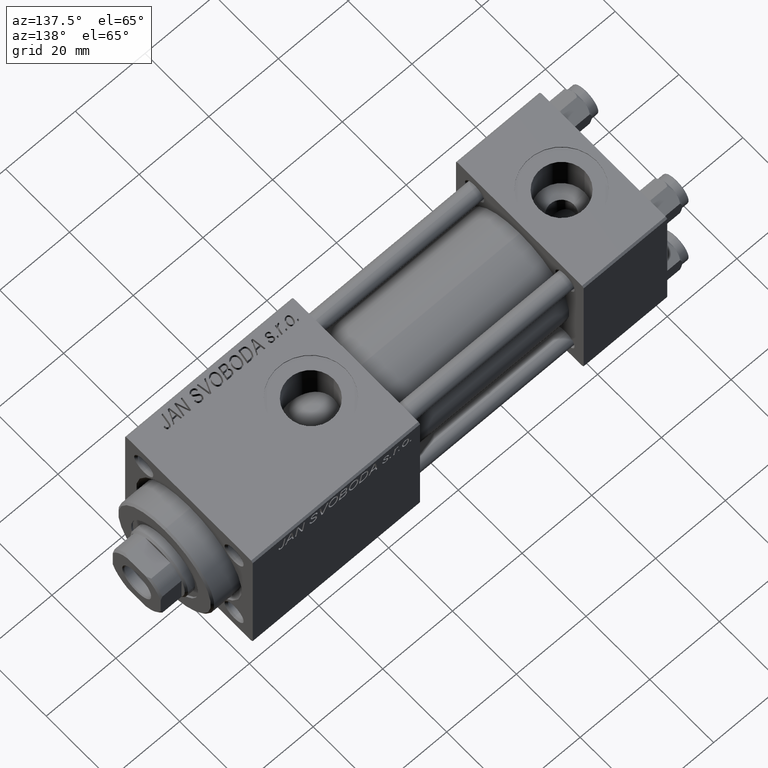
[diagram: clean part render]
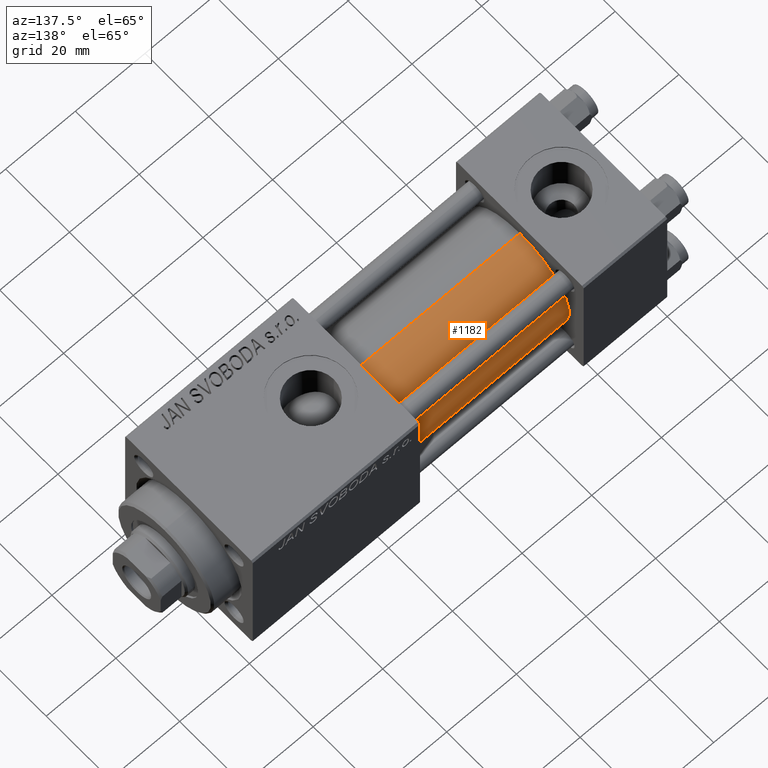
[diagram: same view with one face highlighted and labeled with its STEP entity id]
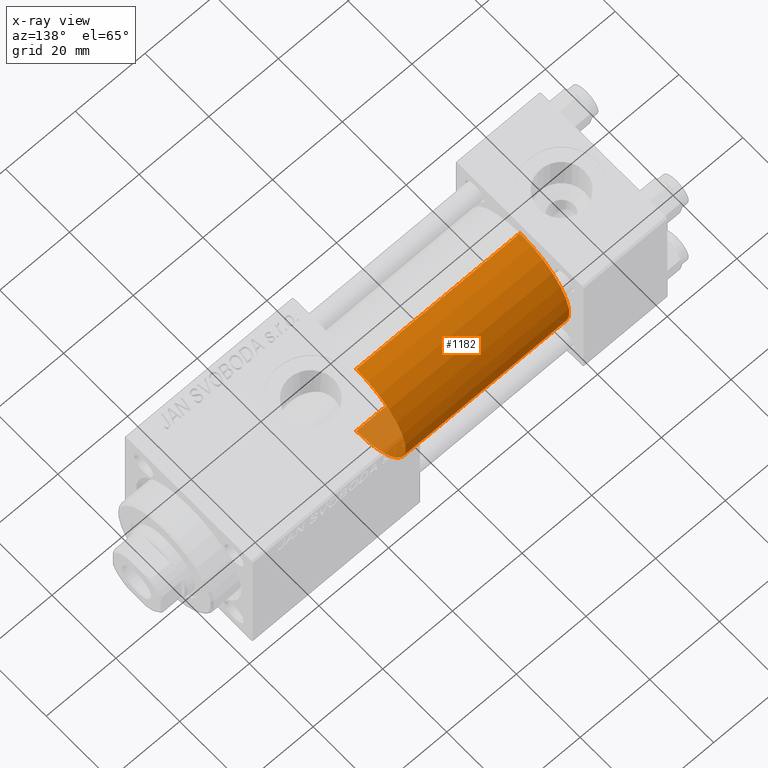
[diagram: x-ray of the same camera — body ghosted, the highlighted face saturated]
A machine part, auxiliary view. The second image highlights one B-rep face of the part: STEP entity #1182.
The next image is the same camera in x-ray: the body ghosted, the highlighted face saturated — about 6% of this face is hidden behind the body in this view.
In plain terms, the highlighted cylindrical surface (partial cylindrical patch) has radius 15.5 mm, axis along (-1, -0, -0).
Its self-contained STEP definition (entity closure, byte-faithful):
#495 = ORIENTED_EDGE ( 'NONE', *, *, #40416, .F. ) ;
#1182 = ADVANCED_FACE ( 'NONE', ( #22752 ), #14850, .T. ) ;
#2471 = DIRECTION ( 'NONE',  ( -1.000000000000000000, -0.000000000000000000, -0.000000000000000000 ) ) ;
#3056 = ORIENTED_EDGE ( 'NONE', *, *, #46759, .T. ) ;
#4459 = CARTESIAN_POINT ( 'NONE',  ( 71.00000000000001421, -7.038826752868131828E-16, -15.50000000000000000 ) ) ;
#6271 = DIRECTION ( 'NONE',  ( -1.000000000000000000, -0.000000000000000000, -0.000000000000000000 ) ) ;
#7082 = ORIENTED_EDGE ( 'NONE', *, *, #43661, .T. ) ;
#8273 = VERTEX_POINT ( 'NONE', #9889 ) ;
#8568 = DIRECTION ( 'NONE',  ( 1.000000000000000000, 0.000000000000000000, 0.000000000000000000 ) ) ;
#9168 = EDGE_LOOP ( 'NONE', ( #24485, #3056, #7082, #495 ) ) ;
#9889 = CARTESIAN_POINT ( 'NONE',  ( 24.00000000000000000, -2.602085213965210642E-15, 15.50000000000000000 ) ) ;
#10637 = DIRECTION ( 'NONE',  ( 1.000000000000000000, 0.000000000000000000, 0.000000000000000000 ) ) ;
#12037 = CARTESIAN_POINT ( 'NONE',  ( 24.00000000000000000, -7.038826752868131828E-16, -15.50000000000000000 ) ) ;
#12098 = LINE ( 'NONE', #4459, #39030 ) ;
#12773 = CARTESIAN_POINT ( 'NONE',  ( 71.00000000000001421, -2.602085213965210642E-15, 0.000000000000000000 ) ) ;
#14850 = CYLINDRICAL_SURFACE ( 'NONE', #20335, 15.50000000000000000 ) ;
#15113 = DIRECTION ( 'NONE',  ( 0.000000000000000000, 0.000000000000000000, 1.000000000000000000 ) ) ;
#19091 = CARTESIAN_POINT ( 'NONE',  ( 24.00000000000000000, -2.602085213965210642E-15, 0.000000000000000000 ) ) ;
#19419 = VERTEX_POINT ( 'NONE', #12037 ) ;
#19667 = AXIS2_PLACEMENT_3D ( 'NONE', #19091, #10637, #39385 ) ;
#20335 = AXIS2_PLACEMENT_3D ( 'NONE', #38825, #2471, #15113 ) ;
#22752 = FACE_OUTER_BOUND ( 'NONE', #9168, .T. ) ;
#24485 = ORIENTED_EDGE ( 'NONE', *, *, #30400, .F. ) ;
#26060 = AXIS2_PLACEMENT_3D ( 'NONE', #12773, #8568, #44156 ) ;
#29823 = VERTEX_POINT ( 'NONE', #41880 ) ;
#30241 = CARTESIAN_POINT ( 'NONE',  ( 71.00000000000001421, -2.602085213965210642E-15, 15.50000000000000000 ) ) ;
#30400 = EDGE_CURVE ( 'NONE', #33167, #29823, #50456, .T. ) ;
#33167 = VERTEX_POINT ( 'NONE', #45852 ) ;
#35567 = DIRECTION ( 'NONE',  ( -1.000000000000000000, -0.000000000000000000, -0.000000000000000000 ) ) ;
#37889 = LINE ( 'NONE', #30241, #45638 ) ;
#38825 = CARTESIAN_POINT ( 'NONE',  ( 71.00000000000001421, -2.602085213965210642E-15, 0.000000000000000000 ) ) ;
#39030 = VECTOR ( 'NONE', #35567, 1000.000000000000000 ) ;
#39385 = DIRECTION ( 'NONE',  ( 0.000000000000000000, 0.000000000000000000, 1.000000000000000000 ) ) ;
#40416 = EDGE_CURVE ( 'NONE', #29823, #8273, #37889, .T. ) ;
#41880 = CARTESIAN_POINT ( 'NONE',  ( 71.00000000000001421, -2.602085213965210642E-15, 15.50000000000000000 ) ) ;
#43661 = EDGE_CURVE ( 'NONE', #19419, #8273, #50779, .T. ) ;
#44156 = DIRECTION ( 'NONE',  ( 0.000000000000000000, 0.000000000000000000, -1.000000000000000000 ) ) ;
#45638 = VECTOR ( 'NONE', #6271, 1000.000000000000000 ) ;
#45852 = CARTESIAN_POINT ( 'NONE',  ( 71.00000000000001421, -7.038826752868131828E-16, -15.50000000000000000 ) ) ;
#46759 = EDGE_CURVE ( 'NONE', #33167, #19419, #12098, .T. ) ;
#50456 = CIRCLE ( 'NONE', #26060, 15.50000000000000000 ) ;
#50779 = CIRCLE ( 'NONE', #19667, 15.50000000000000000 ) ;